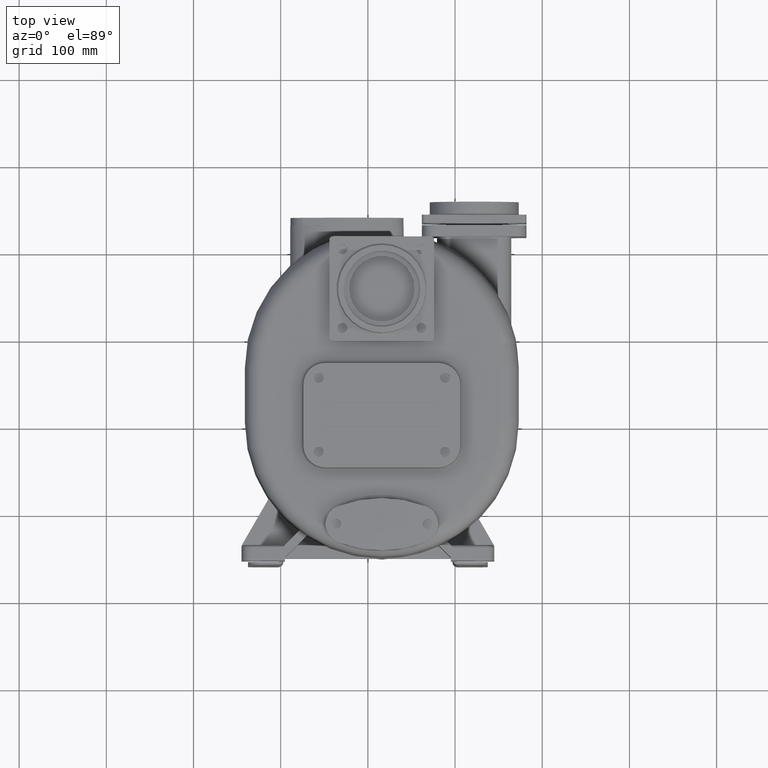
[diagram: clean part render]
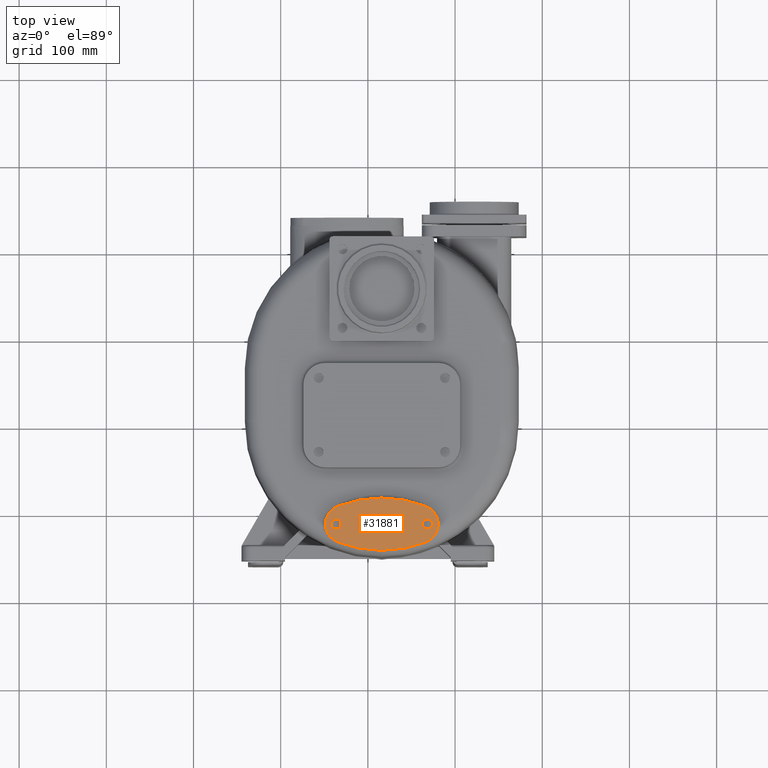
[diagram: same view with one face highlighted and labeled with its STEP entity id]
A machine part, top view. The second image highlights one B-rep face of the part: STEP entity #31881.
In plain terms, the highlighted planar face has unit normal (0, 0, 1).
Its self-contained STEP definition (entity closure, byte-faithful):
#31678=CARTESIAN_POINT('',(1.600168154567E1,-1.000000000370E1,3.265E2));
#31679=DIRECTION('',(0.E0,0.E0,1.E0));
#31680=DIRECTION('',(-3.618673500390E-1,-9.322295967066E-1,0.E0));
#31681=AXIS2_PLACEMENT_3D('',#31678,#31679,#31680);
#31683=CARTESIAN_POINT('',(-2.670663690865E1,-1.2E2,3.265E2));
#31684=DIRECTION('',(0.E0,0.E0,1.E0));
#31685=DIRECTION('',(-3.615050249949E-1,9.323701608822E-1,0.E0));
#31686=AXIS2_PLACEMENT_3D('',#31683,#31684,#31685);
#31688=CARTESIAN_POINT('',(1.600168154567E1,-2.3E2,3.265E2));
#31689=DIRECTION('',(0.E0,0.E0,1.E0));
#31690=DIRECTION('',(3.618673500301E-1,9.322295967101E-1,0.E0));
#31691=AXIS2_PLACEMENT_3D('',#31688,#31689,#31690);
#31693=CARTESIAN_POINT('',(5.871E1,-1.2E2,3.265E2));
#31694=DIRECTION('',(0.E0,0.E0,1.E0));
#31695=DIRECTION('',(3.615050249948E-1,-9.323701608822E-1,0.E0));
#31696=AXIS2_PLACEMENT_3D('',#31693,#31694,#31695);
#31698=CARTESIAN_POINT('',(6.851E1,-1.2E2,3.265E2));
#31699=DIRECTION('',(0.E0,0.E0,1.E0));
#31700=DIRECTION('',(1.E0,0.E0,0.E0));
#31701=AXIS2_PLACEMENT_3D('',#31698,#31699,#31700);
#31703=CARTESIAN_POINT('',(6.851E1,-1.2E2,3.265E2));
#31704=DIRECTION('',(0.E0,0.E0,1.E0));
#31705=DIRECTION('',(-1.E0,0.E0,0.E0));
#31706=AXIS2_PLACEMENT_3D('',#31703,#31704,#31705);
#31708=CARTESIAN_POINT('',(-3.649E1,-1.2E2,3.265E2));
#31709=DIRECTION('',(0.E0,0.E0,-1.E0));
#31710=DIRECTION('',(-1.E0,0.E0,0.E0));
#31711=AXIS2_PLACEMENT_3D('',#31708,#31709,#31710);
#31713=CARTESIAN_POINT('',(-3.649E1,-1.2E2,3.265E2));
#31714=DIRECTION('',(0.E0,0.E0,-1.E0));
#31715=DIRECTION('',(1.E0,0.E0,0.E0));
#31716=AXIS2_PLACEMENT_3D('',#31713,#31714,#31715);
#31802=CARTESIAN_POINT('',(-3.465974745854E1,-1.405121435394E2,3.265E2));
#31803=CARTESIAN_POINT('',(6.666311054989E1,-1.405121435394E2,3.265E2));
#31804=VERTEX_POINT('',#31802);
#31805=VERTEX_POINT('',#31803);
#31806=CARTESIAN_POINT('',(6.666311054989E1,-9.948785646059E1,3.265E2));
#31807=VERTEX_POINT('',#31806);
#31808=CARTESIAN_POINT('',(-3.465974745854E1,-9.948785646059E1,3.265E2));
#31809=VERTEX_POINT('',#31808);
#31814=CARTESIAN_POINT('',(7.426E1,-1.2E2,3.265E2));
#31815=CARTESIAN_POINT('',(6.276E1,-1.2E2,3.265E2));
#31816=VERTEX_POINT('',#31814);
#31817=VERTEX_POINT('',#31815);
#31819=CARTESIAN_POINT('',(-4.224E1,-1.2E2,3.265E2));
#31821=VERTEX_POINT('',#31819);
#31823=CARTESIAN_POINT('',(-3.074E1,-1.2E2,3.265E2));
#31825=VERTEX_POINT('',#31823);
#31856=CARTESIAN_POINT('',(1.601E1,-1.2E2,3.265E2));
#31857=DIRECTION('',(0.E0,0.E0,1.E0));
#31858=DIRECTION('',(-1.E0,0.E0,0.E0));
#31859=AXIS2_PLACEMENT_3D('',#31856,#31857,#31858);
#31860=PLANE('',#31859);
#31862=ORIENTED_EDGE('',*,*,#31861,.F.);
#31864=ORIENTED_EDGE('',*,*,#31863,.F.);
#31866=ORIENTED_EDGE('',*,*,#31865,.F.);
#31868=ORIENTED_EDGE('',*,*,#31867,.F.);
#31869=EDGE_LOOP('',(#31862,#31864,#31866,#31868));
#31870=FACE_OUTER_BOUND('',#31869,.F.);
#31872=ORIENTED_EDGE('',*,*,#31871,.T.);
#31874=ORIENTED_EDGE('',*,*,#31873,.T.);
#31875=EDGE_LOOP('',(#31872,#31874));
#31876=FACE_BOUND('',#31875,.F.);
#31877=ORIENTED_EDGE('',*,*,#31848,.F.);
#31878=ORIENTED_EDGE('',*,*,#31837,.F.);
#31879=EDGE_LOOP('',(#31877,#31878));
#31880=FACE_BOUND('',#31879,.F.);
#31881=ADVANCED_FACE('',(#31870,#31876,#31880),#31860,.T.);
#31682=CIRCLE('',#31681,1.399999999966E2);
#31687=CIRCLE('',#31686,2.2E1);
#31692=CIRCLE('',#31691,1.4E2);
#31697=CIRCLE('',#31696,2.2E1);
#31702=CIRCLE('',#31701,5.75E0);
#31707=CIRCLE('',#31706,5.75E0);
#31712=CIRCLE('',#31711,5.75E0);
#31717=CIRCLE('',#31716,5.75E0);
#31837=EDGE_CURVE('',#31825,#31821,#31717,.T.);
#31848=EDGE_CURVE('',#31821,#31825,#31712,.T.);
#31861=EDGE_CURVE('',#31804,#31805,#31682,.T.);
#31863=EDGE_CURVE('',#31809,#31804,#31687,.T.);
#31865=EDGE_CURVE('',#31807,#31809,#31692,.T.);
#31867=EDGE_CURVE('',#31805,#31807,#31697,.T.);
#31871=EDGE_CURVE('',#31816,#31817,#31702,.T.);
#31873=EDGE_CURVE('',#31817,#31816,#31707,.T.);